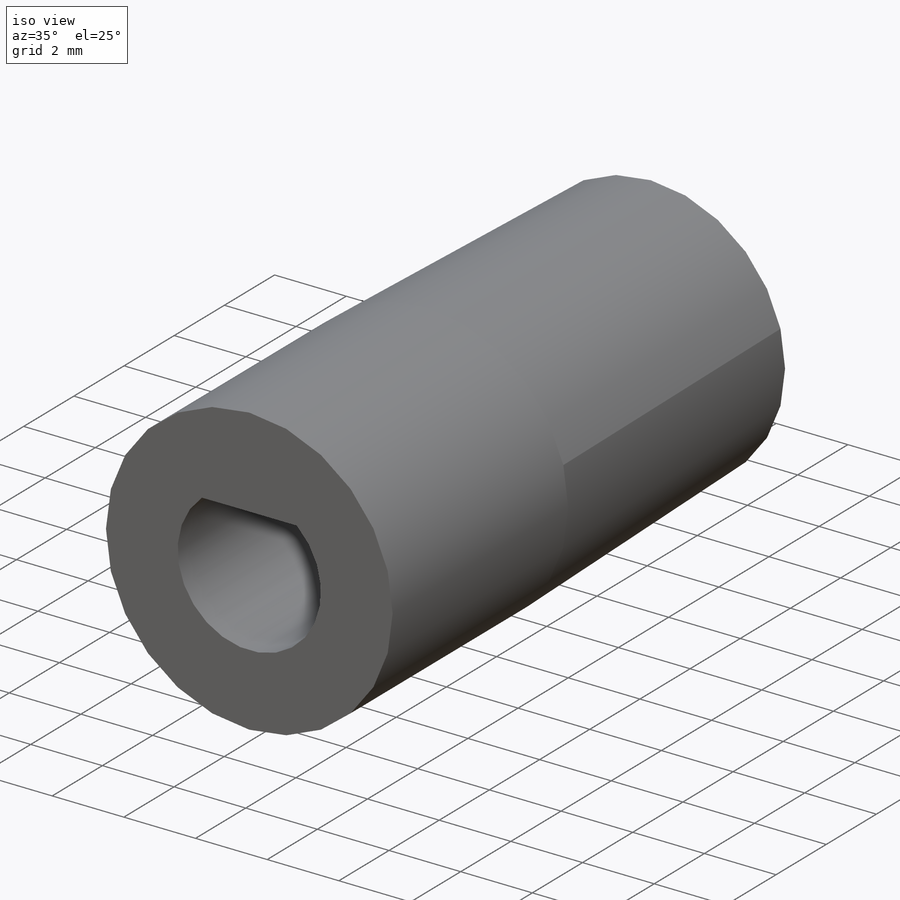
[diagram: iso view]
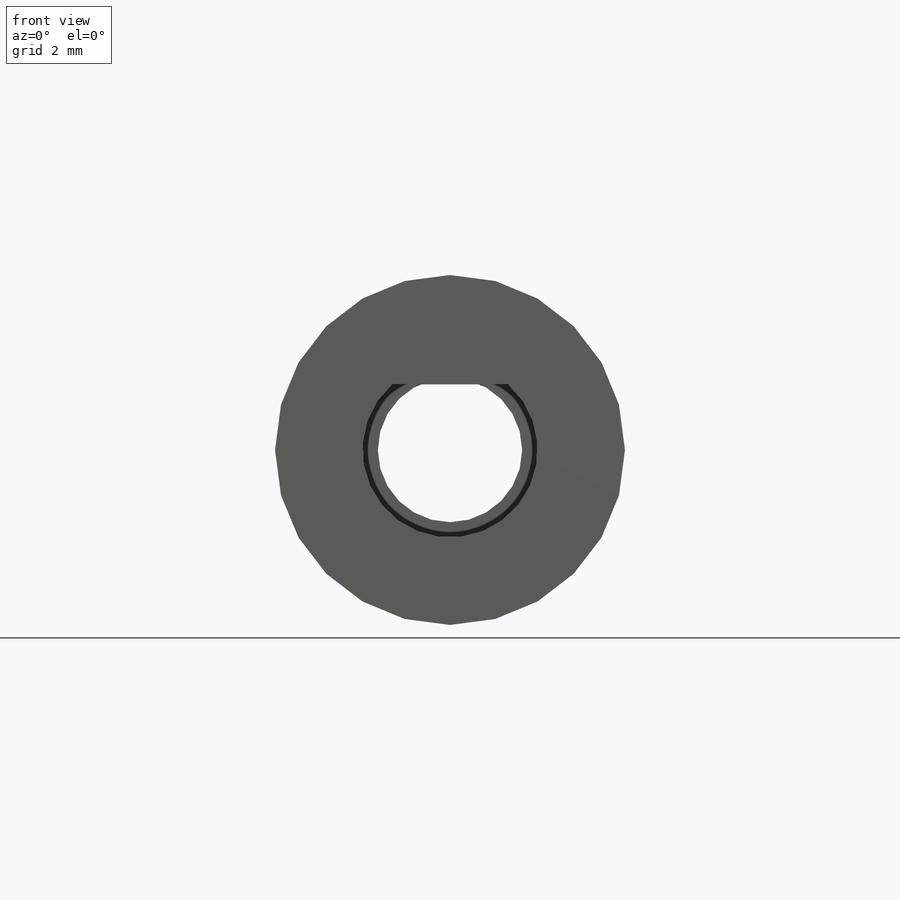
[diagram: front view]
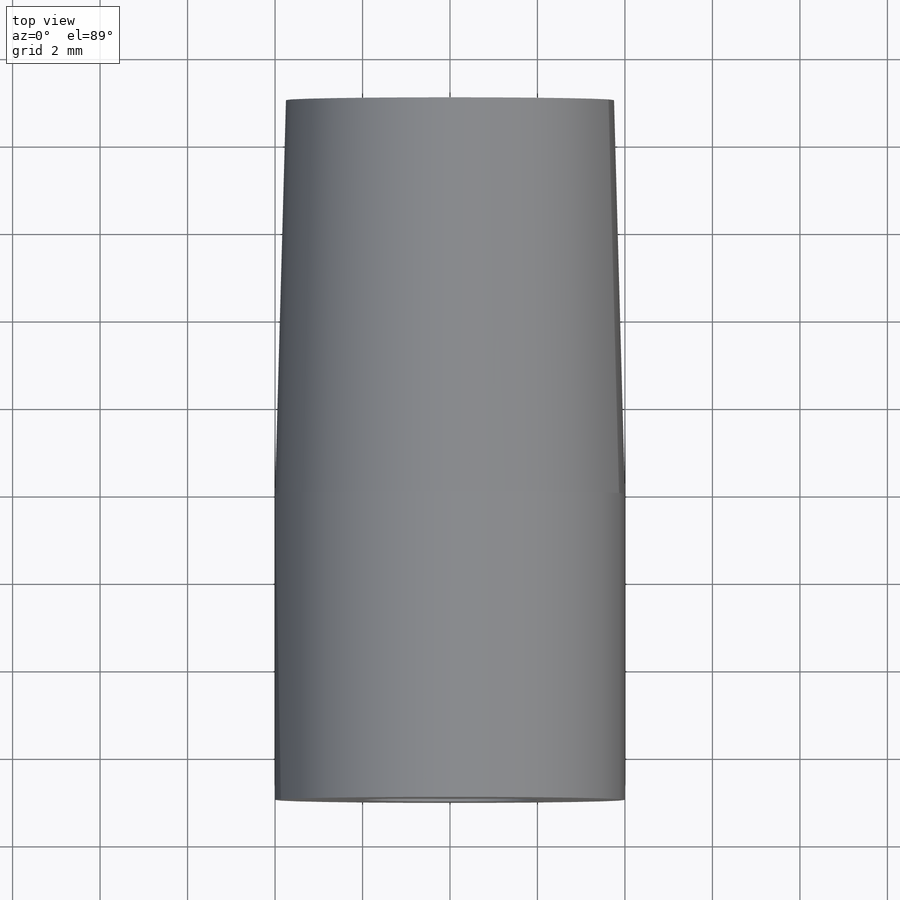
[diagram: top view]
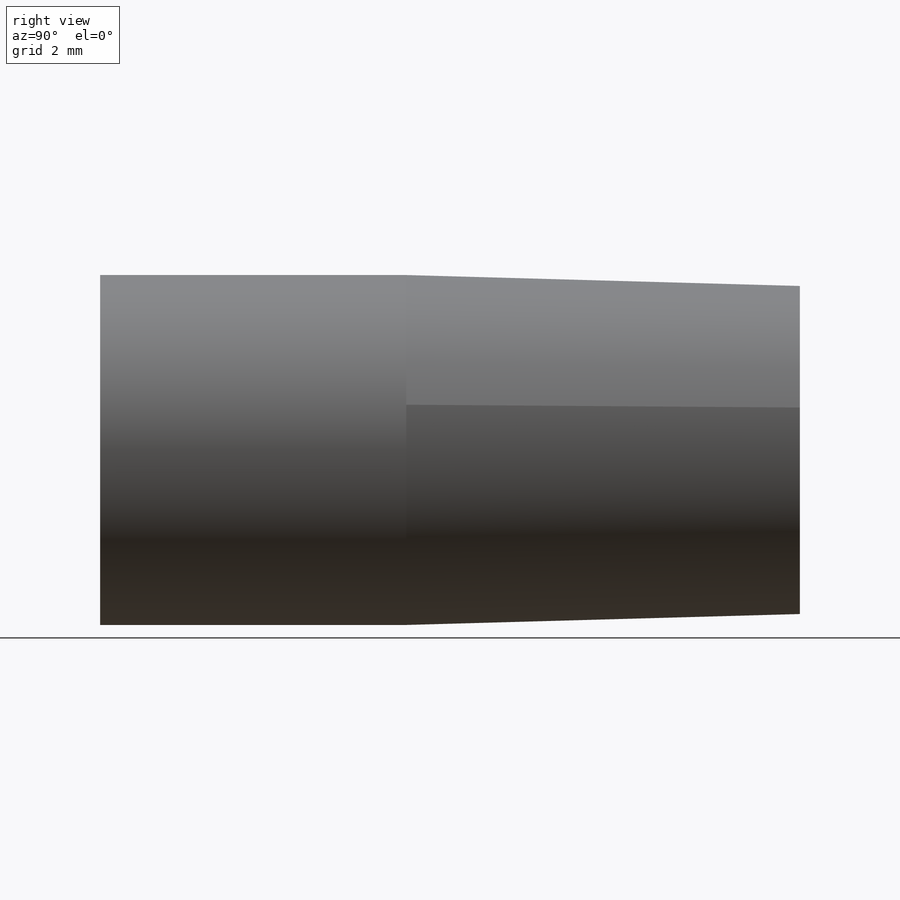
[diagram: right view]
SOLIDWORKS PART (.sldprt)
format: sldprt  version: not decoded by parser v0  size: 274,944 bytes
history: native  units: mm
features: sketch x5, plane x3, material x1, revolve x1, extrude x1, hole x1, thread x1, cut_extrude x1 (+8 scaffold rows collapsed)
feature tree (22):
  scaffold x8  (default folders/planes/origin — collapsed)
  material  "Сплав 2024"
  plane  "Спереди"
  plane  "Сверху"
  plane  "Справа"
  sketch  "Эскиз1"  dims[D1=3.75mm D2=4.0mm D3=9.0mm]
  revolve  "Повернуть1"  Angle=360deg
  sketch  "Эскиз6"  dims[D1=~4.949591mm]
  extrude  "Бобышка-Вытянуть2"  Depth=7mm
  hole  "Отверстие обработанное метчиком M4x0.72"  [1 undecoded]
  sketch  "Эскиз8"
  sketch  "Эскиз7"  dims[hole-wizard template sketch: 47 standard entries collapsed; hole parameters kept: c15.Глубина сверла=9.0mm c15.D3=~14.816244mm c15.Угол заточки сверла=118.0deg]
  thread  "Отверстие резьбы2"  Diameter=4.3mm  [1 undecoded]
  sketch  "Эскиз9"  dims[D1=4.0mm D2=1.5mm D3=~0.219125mm]
  cut_extrude  "Вырез-Вытянуть1"  Depth=7mm
decode coverage: 8 of 10 modeling features carry decoded parameters
note: ~ marks probable driven/reference dimensions
note: 2 parameter values undecoded
note: suppression state not decoded; provenance and decode notes live in map.json
